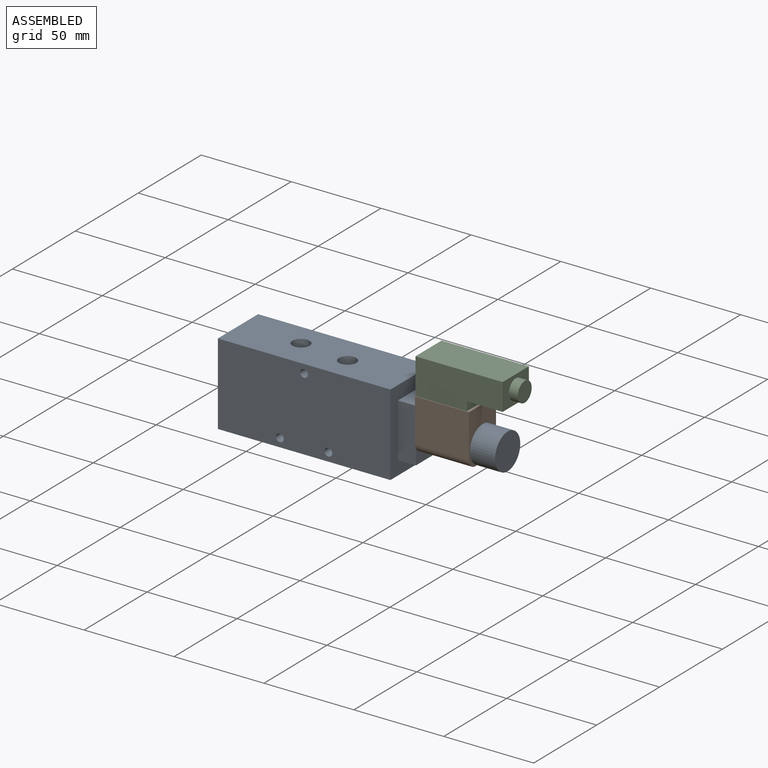
[diagram: assembled view]
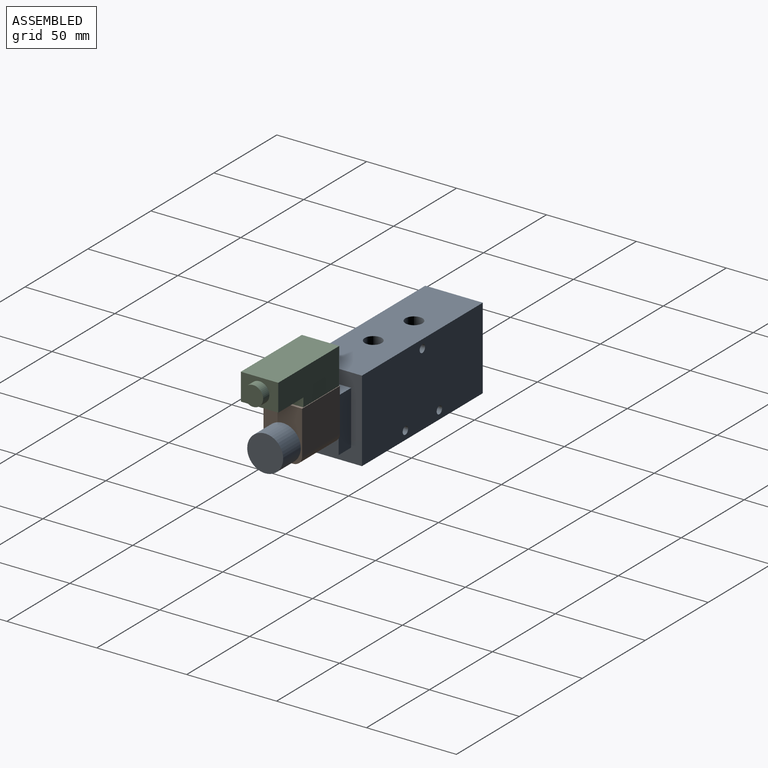
[diagram: assembled view, second angle]
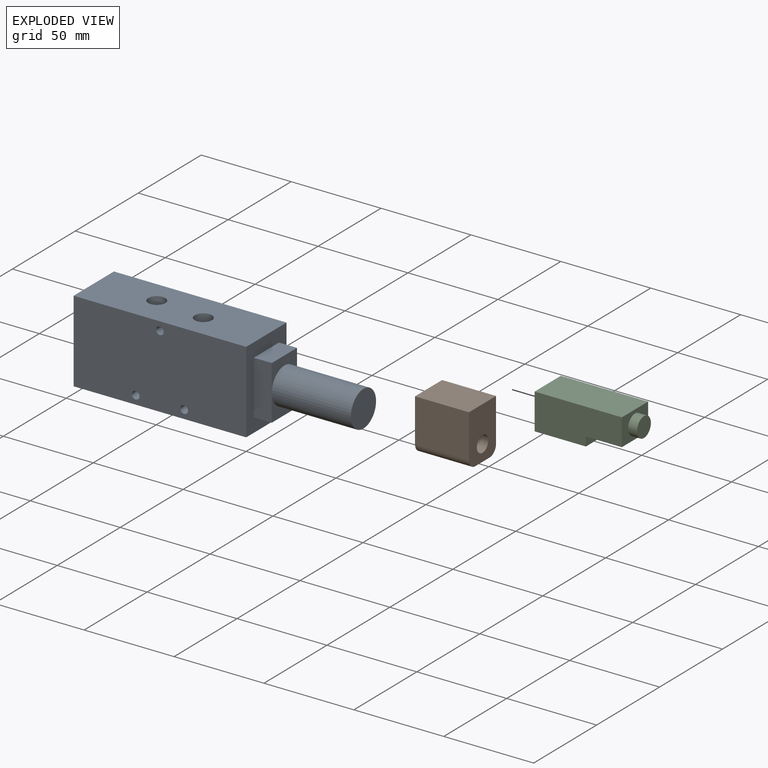
[diagram: exploded view]
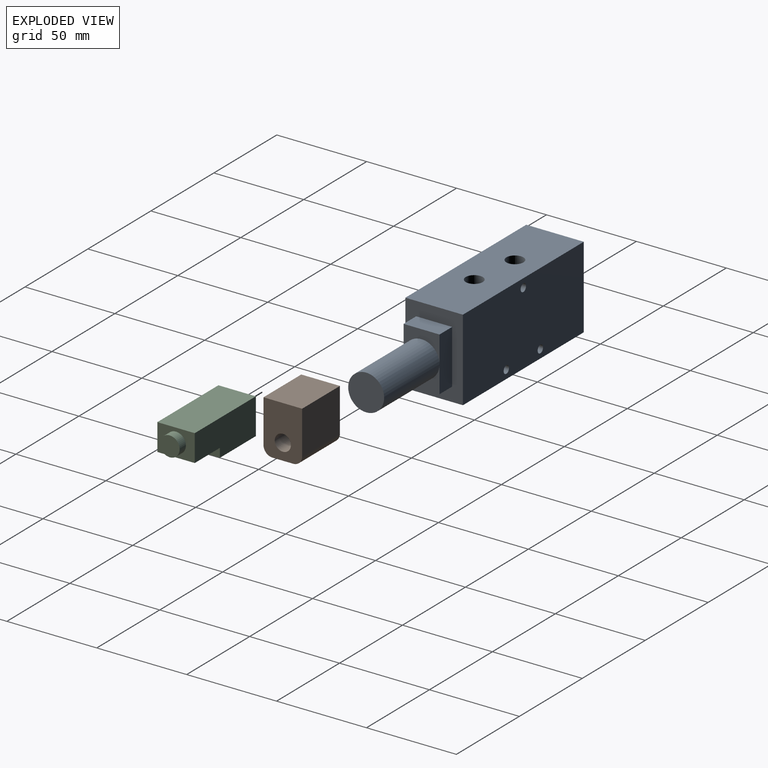
[diagram: exploded view, second angle]
ASSEMBLY  parts=3 mates=6
PART A: 27 faces, bbox 150x32x45.5 mm
  f0: plane 20x15mm, normal (1,0,0), area 142.9mm2, adj f7,f8,f10,f12
  f1: plane 45.5x32mm, normal (-1,0,0), area 1456mm2, adj f2,f4,f5,f6
  f2: plane 96x32mm, normal (0,0,-1), area 2858.2mm2, adj f1,f3,f5,f6,f22,f24,f26
  f3: plane 45.5x32mm, normal (1,0,0), area 856mm2, adj f2,f4,f5,f6,f7,f8,f9,f10
  f4: plane 96x32mm, normal (0,0,1), area 2929.5mm2, adj f1,f3,f5,f6,f18,f20
  f5: plane 96x45.5mm, normal (0,-1,0), area 4324.4mm2, adj f1,f2,f3,f4,f14,f15,f16
  f6: plane 96x45.5mm, normal (0,1,0), area 4324.4mm2, adj f1,f2,f3,f4,f14,f15,f16
  f7: plane 20x10mm, normal (0,0,1), area 200mm2, adj f0,f3,f8,f10
  f8: plane 30x10mm, normal (0,-1,0), area 300mm2, adj f0,f3,f7,f9,f11
  f9: plane 20x10mm, normal (0,0,-1), area 200mm2, adj f3,f8,f10,f11
  f10: plane 30x10mm, normal (0,1,0), area 300mm2, adj f0,f3,f7,f9,f11
  f11: plane 20x15mm, normal (1,0,0), area 142.9mm2, adj f8,f9,f10,f12
  f12: cylinder r=10mm len=44mm, axis (-1,0,0), area 2764.6mm2, adj f0,f11,f13
  f13: plane 20x20mm, normal (1,0,0), area 314.2mm2, adj f12
  f14: cylinder r=2.15mm len=32mm, axis (0,-1,0), area 432.3mm2, adj f5,f6
  f15: cylinder r=2.15mm len=32mm, axis (0,-1,0), area 432.3mm2, adj f5,f6
  f16: cylinder r=2.15mm len=32mm, axis (0,-1,0), area 432.3mm2, adj f5,f6
  f17: cone r=0mm half-angle=59deg, axis (0,0,1), area 83.1mm2, adj f18
  f18: cylinder r=4.76mm len=15mm, axis (0,0,1), area 448.9mm2, adj f4,f17
  f19: cone r=0mm half-angle=59deg, axis (0,0,1), area 83.1mm2, adj f20
  f20: cylinder r=4.76mm len=15mm, axis (0,0,1), area 448.9mm2, adj f4,f19
  f21: cone r=0mm half-angle=59deg, axis (0,0,-1), area 83.1mm2, adj f22
  f22: cylinder r=4.76mm len=15mm, axis (0,0,-1), area 448.9mm2, adj f2,f21
  f23: cone r=0mm half-angle=59deg, axis (0,0,-1), area 83.1mm2, adj f24
  f24: cylinder r=4.76mm len=15mm, axis (0,0,-1), area 448.9mm2, adj f2,f23
  f25: cone r=0mm half-angle=59deg, axis (0,0,-1), area 83.1mm2, adj f26
  f26: cylinder r=4.76mm len=15mm, axis (0,0,-1), area 448.9mm2, adj f2,f25
PART B: 9 faces, bbox 29x21.5x30 mm
  f0: plane 30x11.5mm, normal (-1,0,0), area 345mm2, adj f1,f3,f7,f8
  f1: plane 29x21.5mm, normal (0,0,-1), area 549.2mm2, adj f0,f2,f4,f5,f6,f7,f8
  f2: plane 30x21.5mm, normal (1,0,0), area 645mm2, adj f1,f3,f4,f5
  f3: plane 29x21.5mm, normal (0,0,1), area 549.2mm2, adj f0,f2,f4,f5,f6,f7,f8
  f4: plane 30x24mm, normal (0,-1,0), area 720mm2, adj f1,f2,f3,f8
  f5: plane 30x24mm, normal (0,1,0), area 720mm2, adj f1,f2,f3,f7
  f6: cylinder r=4.5mm len=30mm, axis (0,0,1), area 848.2mm2, adj f1,f3
  f7: cylinder r=5mm len=30mm, axis (0,0,-1), area 235.6mm2, adj f0,f1,f3,f5
  f8: cylinder r=5mm len=30mm, axis (0,0,1), area 235.6mm2, adj f0,f1,f3,f4
PART C: 10 faces, bbox 20x20.8x53.5 mm
  f0: plane 28.5x20.8mm, normal (-1,0,0), area 592.8mm2, adj f1,f5,f6,f7
  f1: plane 20.8x5mm, normal (0,0,-1), area 104mm2, adj f0,f2,f6,f7
  f2: plane 20.8x20mm, normal (-1,0,0), area 416mm2, adj f1,f3,f6,f7
  f3: plane 20.8x15mm, normal (0,0,-1), area 217mm2, adj f2,f4,f6,f7,f8
  f4: plane 48.5x20.8mm, normal (1,0,0), area 1008.8mm2, adj f3,f5,f6,f7
  f5: plane 20.8x20mm, normal (0,0,1), area 416mm2, adj f0,f4,f6,f7
  f6: plane 48.5x20mm, normal (0,-1,0), area 870mm2, adj f0,f1,f2,f3,f4,f5
  f7: plane 48.5x20mm, normal (0,1,0), area 870mm2, adj f0,f1,f2,f3,f4,f5
  f8: cylinder r=5.5mm len=11mm, axis (0,0,1), area 172.8mm2, adj f3,f9
  f9: plane 11x11mm, normal (0,0,-1), area 95mm2, adj f8
PLACE A t=(-21.18,39.83,-33.62)mm fixed
PLACE B rot(axis=(0,-1,0),90deg) t=(114.82,34.58,-19.87)mm
PLACE C rot(axis=(0,-1,0),90deg) t=(113.32,34.23,9.13)mm
MATE parallel C.f6 <-> B.f4  axis (0,-1,0) through (107.43,13.43,20)mm
MATE cylindrical B.f6 <-> A.f12  axis (-1,0,0) through (84.82,23.83,-10.87)mm
MATE parallel A.f7 <-> B.f2  axis (0,0,1) through (79.82,23.83,4.13)mm
MATE planar B.f3 <-> A.f0  axis (-1,0,0) through (84.82,23.83,-4.47)mm
MATE planar C.f0 <-> B.f2  axis (0,0,-1) through (99.07,23.83,9.13)mm
MATE planar C.f5 <-> B.f3  axis (-1,0,0) through (84.82,23.83,19.13)mm
